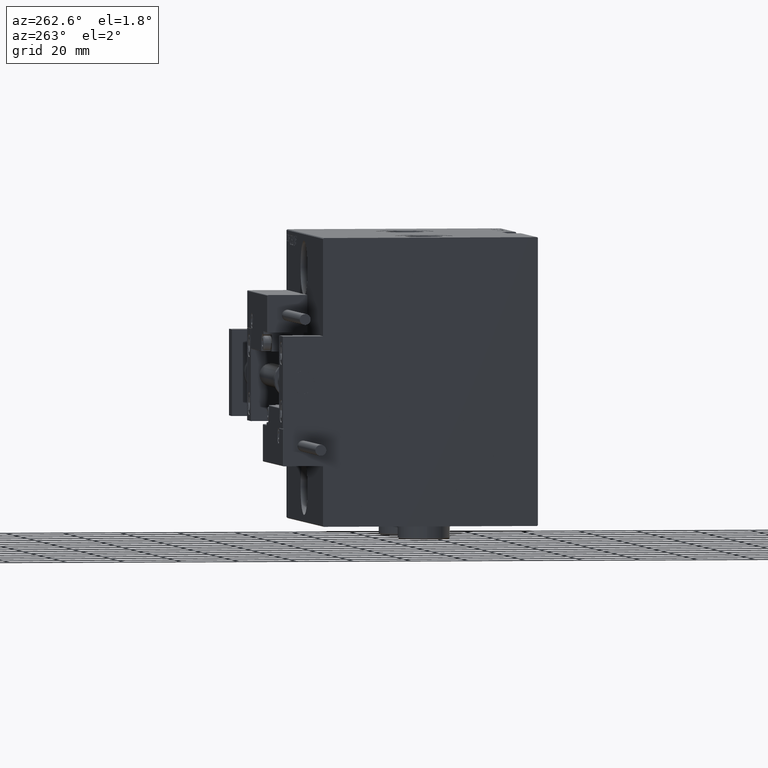
[diagram: clean part render]
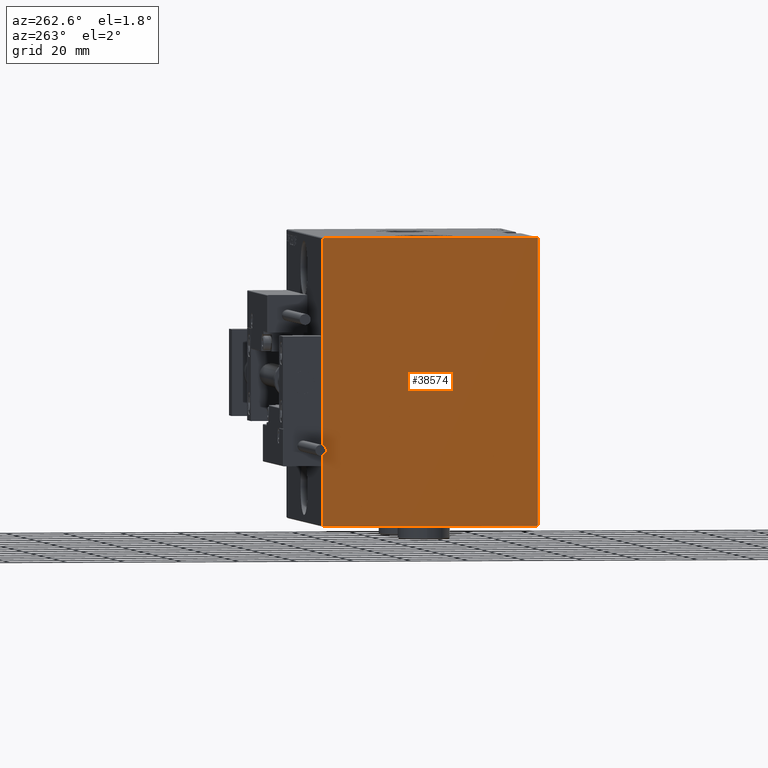
[diagram: same view with one face highlighted and labeled with its STEP entity id]
A machine part, auxiliary view. The second image highlights one B-rep face of the part: STEP entity #38574.
In plain terms, the highlighted planar face has unit normal (-1, 0, 0).
Its self-contained STEP definition (entity closure, byte-faithful):
#231 = CARTESIAN_POINT ( 'NONE',  ( 98.00000000000000000, 37.19999999999998153, 50.00000000000001421 ) ) ;
#425 = CARTESIAN_POINT ( 'NONE',  ( 98.00000000000000000, -43.59999999999956088, 43.60000000000057696 ) ) ;
#597 = EDGE_CURVE ( 'NONE', #18156, #47850, #39176, .T. ) ;
#806 = LINE ( 'NONE', #5062, #26709 ) ;
#1182 = EDGE_LOOP ( 'NONE', ( #1901, #21765, #25534, #50891, #20405, #34579, #41479, #35026 ) ) ;
#1282 = CARTESIAN_POINT ( 'NONE',  ( 98.00000000000000000, -43.59999999999999432, -43.59999999999999432 ) ) ;
#1901 = ORIENTED_EDGE ( 'NONE', *, *, #597, .T. ) ;
#2263 = VECTOR ( 'NONE', #17214, 1000.000000000000000 ) ;
#2876 = CARTESIAN_POINT ( 'NONE',  ( 98.00000000000000000, -37.50000000000000000, 49.69999999999998153 ) ) ;
#3863 = CARTESIAN_POINT ( 'NONE',  ( 98.00000000000000000, 0.000000000000000000, 0.000000000000000000 ) ) ;
#4125 = DIRECTION ( 'NONE',  ( 0.000000000000000000, 0.000000000000000000, -1.000000000000000000 ) ) ;
#4230 = VERTEX_POINT ( 'NONE', #37566 ) ;
#5062 = CARTESIAN_POINT ( 'NONE',  ( 98.00000000000000000, 43.60000000000042775, 43.59999999999941878 ) ) ;
#6116 = CARTESIAN_POINT ( 'NONE',  ( 98.00000000000000000, -37.50000000000000000, -50.00000000000001421 ) ) ;
#10351 = EDGE_CURVE ( 'NONE', #39658, #50571, #40225, .T. ) ;
#12144 = DIRECTION ( 'NONE',  ( 1.000000000000000000, 0.000000000000000000, 0.000000000000000000 ) ) ;
#12807 = EDGE_CURVE ( 'NONE', #4230, #39658, #37200, .T. ) ;
#14425 = VECTOR ( 'NONE', #39764, 1000.000000000000114 ) ;
#14565 = CARTESIAN_POINT ( 'NONE',  ( 98.00000000000000000, 37.50000000000000711, -49.70000000000000284 ) ) ;
#14858 = CARTESIAN_POINT ( 'NONE',  ( 98.00000000000000000, -37.19999999999997442, -50.00000000000001421 ) ) ;
#15004 = CARTESIAN_POINT ( 'NONE',  ( 98.00000000000000000, 37.19999999999998863, -50.00000000000000711 ) ) ;
#16050 = CARTESIAN_POINT ( 'NONE',  ( 98.00000000000000000, 37.49999999999999289, 50.00000000000001421 ) ) ;
#17214 = DIRECTION ( 'NONE',  ( 0.000000000000000000, -1.387778780781445182E-16, 1.000000000000000000 ) ) ;
#18156 = VERTEX_POINT ( 'NONE', #14858 ) ;
#18195 = VECTOR ( 'NONE', #52217, 1000.000000000000000 ) ;
#20405 = ORIENTED_EDGE ( 'NONE', *, *, #23414, .T. ) ;
#21765 = ORIENTED_EDGE ( 'NONE', *, *, #33613, .T. ) ;
#22046 = VERTEX_POINT ( 'NONE', #25679 ) ;
#22430 = LINE ( 'NONE', #50950, #14425 ) ;
#22537 = VECTOR ( 'NONE', #37460, 1000.000000000000114 ) ;
#23414 = EDGE_CURVE ( 'NONE', #47222, #4230, #52571, .T. ) ;
#24775 = EDGE_CURVE ( 'NONE', #51637, #22046, #30005, .T. ) ;
#25534 = ORIENTED_EDGE ( 'NONE', *, *, #24775, .T. ) ;
#25679 = CARTESIAN_POINT ( 'NONE',  ( 98.00000000000000000, 37.49999999999999289, 49.70000000000000284 ) ) ;
#26046 = CARTESIAN_POINT ( 'NONE',  ( 98.00000000000000000, -37.50000000000000000, -49.69999999999999574 ) ) ;
#26131 = DIRECTION ( 'NONE',  ( -0.000000000000000000, -0.7071067811865392461, 0.7071067811865556774 ) ) ;
#26709 = VECTOR ( 'NONE', #26131, 1000.000000000000114 ) ;
#28675 = VECTOR ( 'NONE', #32314, 1000.000000000000000 ) ;
#30005 = LINE ( 'NONE', #49751, #2263 ) ;
#31189 = DIRECTION ( 'NONE',  ( 0.000000000000000000, 1.000000000000000000, 9.251858538542970348E-17 ) ) ;
#31416 = PLANE ( 'NONE',  #46945 ) ;
#32314 = DIRECTION ( 'NONE',  ( 0.000000000000000000, -1.000000000000000000, -1.850371707708594563E-16 ) ) ;
#33146 = VECTOR ( 'NONE', #31189, 1000.000000000000000 ) ;
#33613 = EDGE_CURVE ( 'NONE', #47850, #51637, #22430, .T. ) ;
#34071 = LINE ( 'NONE', #1282, #44644 ) ;
#34579 = ORIENTED_EDGE ( 'NONE', *, *, #12807, .T. ) ;
#35026 = ORIENTED_EDGE ( 'NONE', *, *, #44202, .T. ) ;
#37200 = LINE ( 'NONE', #425, #22537 ) ;
#37460 = DIRECTION ( 'NONE',  ( 0.000000000000000000, -0.7071067811865556774, -0.7071067811865392461 ) ) ;
#37566 = CARTESIAN_POINT ( 'NONE',  ( 98.00000000000000000, -37.19999999999996732, 50.00000000000000000 ) ) ;
#38574 = ADVANCED_FACE ( 'NONE', ( #40407 ), #31416, .T. ) ;
#39176 = LINE ( 'NONE', #6116, #33146 ) ;
#39658 = VERTEX_POINT ( 'NONE', #2876 ) ;
#39764 = DIRECTION ( 'NONE',  ( -0.000000000000000000, 0.7071067811865556774, 0.7071067811865392461 ) ) ;
#40225 = LINE ( 'NONE', #48211, #18195 ) ;
#40407 = FACE_OUTER_BOUND ( 'NONE', #1182, .T. ) ;
#41479 = ORIENTED_EDGE ( 'NONE', *, *, #10351, .T. ) ;
#44202 = EDGE_CURVE ( 'NONE', #50571, #18156, #34071, .T. ) ;
#44644 = VECTOR ( 'NONE', #50340, 1000.000000000000114 ) ;
#46945 = AXIS2_PLACEMENT_3D ( 'NONE', #3863, #12144, #4125 ) ;
#47008 = EDGE_CURVE ( 'NONE', #22046, #47222, #806, .T. ) ;
#47222 = VERTEX_POINT ( 'NONE', #231 ) ;
#47850 = VERTEX_POINT ( 'NONE', #15004 ) ;
#48211 = CARTESIAN_POINT ( 'NONE',  ( 98.00000000000000000, -37.50000000000000000, 50.00000000000000000 ) ) ;
#49751 = CARTESIAN_POINT ( 'NONE',  ( 98.00000000000000000, 37.50000000000000711, -50.00000000000000711 ) ) ;
#50340 = DIRECTION ( 'NONE',  ( -0.000000000000000000, 0.7071067811865474617, -0.7071067811865474617 ) ) ;
#50571 = VERTEX_POINT ( 'NONE', #26046 ) ;
#50891 = ORIENTED_EDGE ( 'NONE', *, *, #47008, .T. ) ;
#50950 = CARTESIAN_POINT ( 'NONE',  ( 98.00000000000000000, 43.59999999999956088, -43.60000000000057696 ) ) ;
#51637 = VERTEX_POINT ( 'NONE', #14565 ) ;
#52217 = DIRECTION ( 'NONE',  ( 0.000000000000000000, 0.000000000000000000, -1.000000000000000000 ) ) ;
#52571 = LINE ( 'NONE', #16050, #28675 ) ;